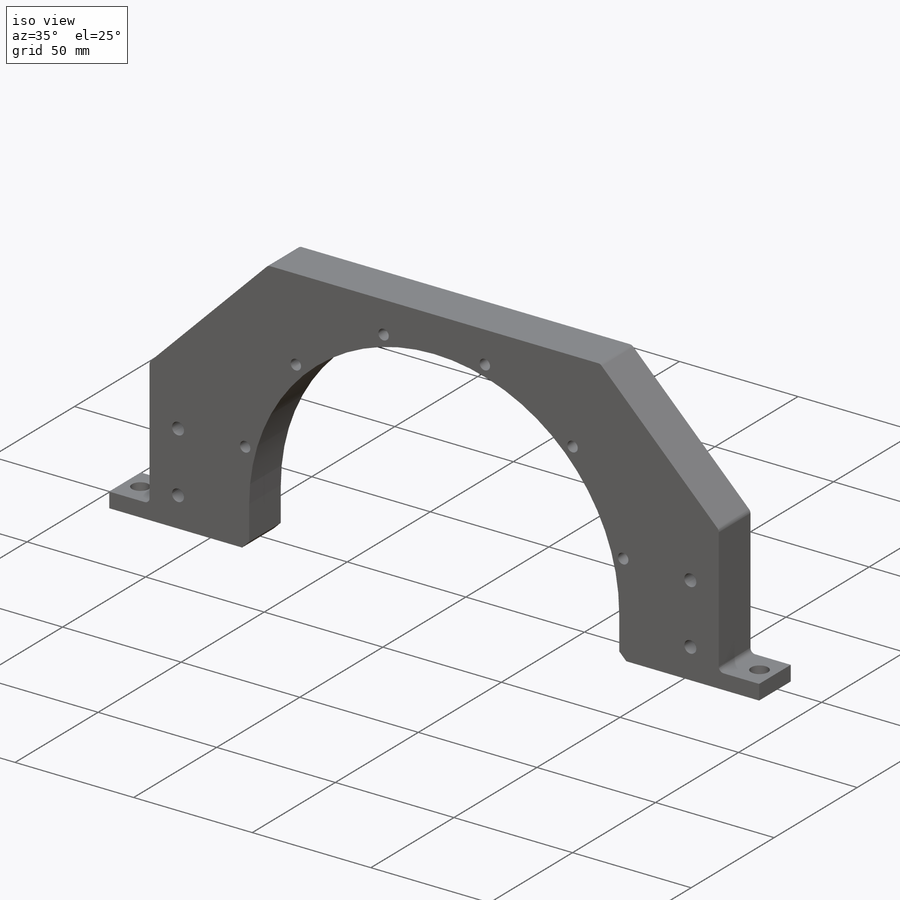
[diagram: iso view]
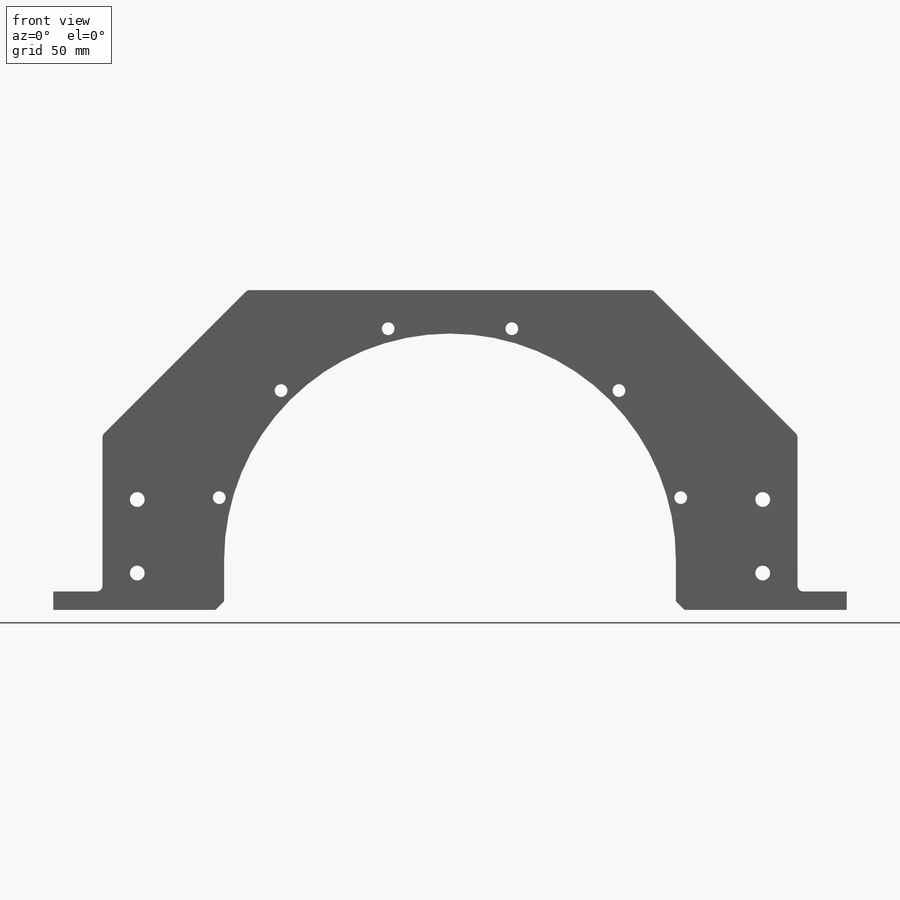
[diagram: front view]
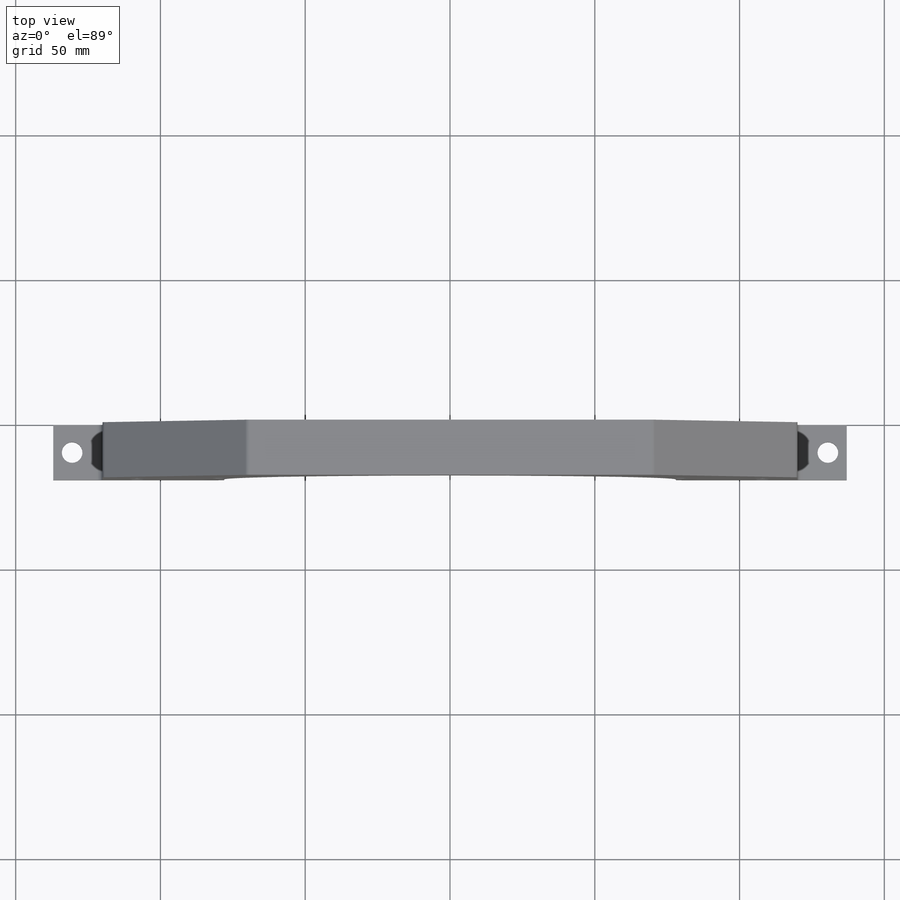
[diagram: top view]
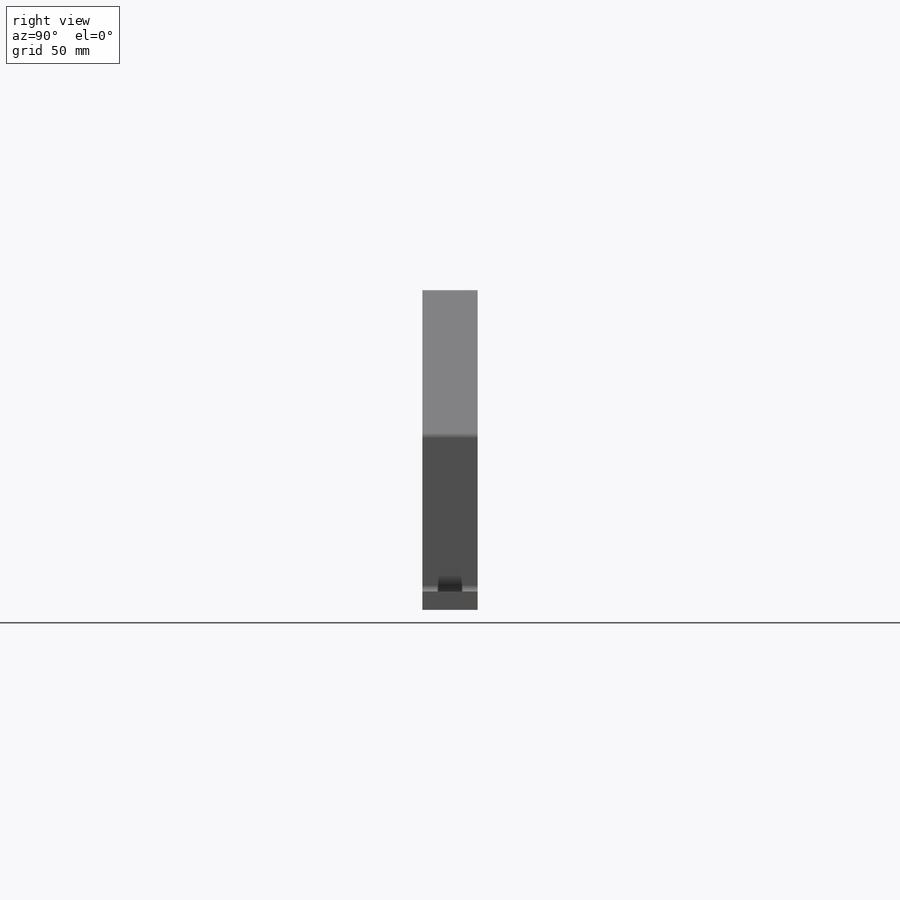
[diagram: right view]
SOLIDWORKS PART (.sldprt)
format: sldprt  version: not decoded by parser v0  size: 354,304 bytes
history: native  units: mm
features: sketch x7, thread x5, hole x3, chamfer x2, material x1, extrude x1, fillet x1, mirror x1 (+11 scaffold rows collapsed)
feature tree (32):
  scaffold x11  (default folders/planes/origin — collapsed)
  material  "6061-T6 (SS)"
  sketch  "Sketch1"  dims[c1.D1=78.0mm c1.D2=15.0mm c1.D3=6.35mm c1.D4=17.0mm c1.D5=15.0mm c1.D6=17.4mm c2.D2=120.0mm]
  extrude  "Boss-Extrude1"  Depth=19.05mm
  hole  "Tapped Hole for #8-32 Helicoil1"  Diameter=4.3942mm Depth=19.05mm
  sketch  "Sketch3"  dims[D1=82.5mm]
  sketch  "Sketch2"  dims[hole-wizard template sketch: 60 standard entries collapsed; hole parameters kept: c18.Thru Tap Drill Depth=19.05mm]
  thread  "Hole Thread1"  Diameter=12.7mm  [1 undecoded]
  thread  "Hole Thread2"  Diameter=12.7mm  [1 undecoded]
  thread  "Hole Thread3"  Diameter=12.7mm  [1 undecoded]
  hole  "1/4-20 Tapped Hole1"  Diameter=5.1054mm Depth=19.05mm
  sketch  "Sketch7"  dims[D1=108.0mm D2=25.4mm D3=12.7mm]
  sketch  "Sketch8"  dims[hole-wizard template sketch: 60 standard entries collapsed; hole parameters kept: c18.Thru Tap Drill Depth=19.05mm]
  thread  "Hole Thread4"  Diameter=6.35mm  [1 undecoded]
  thread  "Hole Thread5"  Diameter=6.35mm  [1 undecoded]
  hole  "1/4 Clearance Hole1"  Diameter=7.14248mm Depth=12.7mm
  sketch  "Sketch5"  dims[c1.D1=3.0mm c1.D2=6.0mm c1.D3=6.0mm c2.D2=15.0mm c2.D1=6.5mm]
  sketch  "Sketch4"  dims[hole-wizard template sketch: 47 standard entries collapsed; hole parameters kept: c15.Hole Depth=12.7mm c15.D3=~14.816244mm c15.Drill Angle=118.0deg]
  chamfer  "Chamfer2"  Distance=3mm Angle=45deg
  chamfer  "Chamfer3"  Distance=50mm Angle=45deg
  fillet  "Fillet2"  Radius=2mm
  mirror  "Mirror2"
decode coverage: 19 of 20 modeling features carry decoded parameters
note: ~ marks probable driven/reference dimensions
note: 5 parameter values undecoded
note: suppression state not decoded; provenance and decode notes live in map.json
